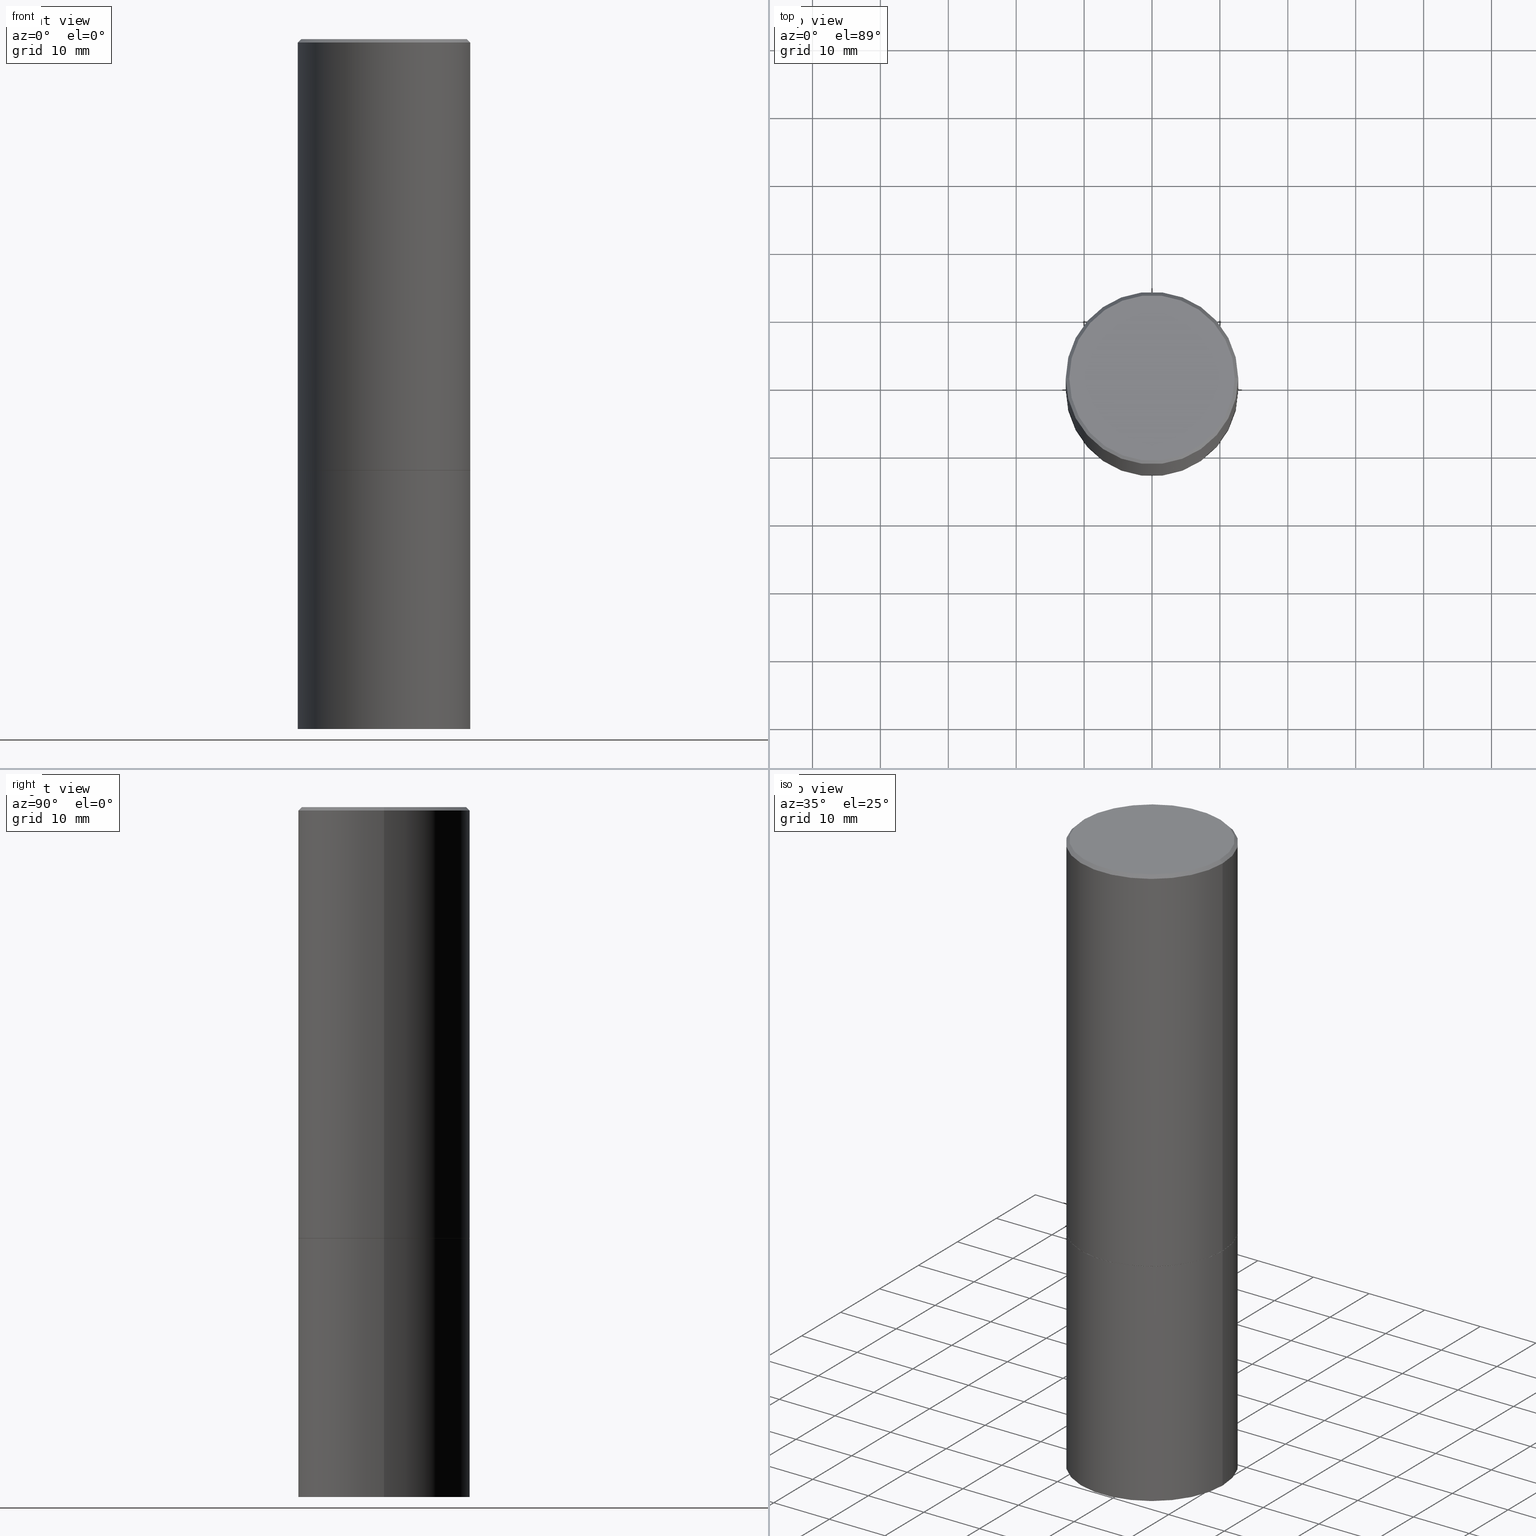
[diagram: canonical four-view strip — front | top / right | iso, engineering-drawing reading convention]
A machine part, canonical four-view strip (front | top / right | iso — engineering-drawing reading convention). The complete STEP part file that produces these views, byte-faithful:
ISO-10303-21;
HEADER;
FILE_DESCRIPTION (( 'STEP AP203' ),
    '1' );
FILE_NAME ('39175.STEP',
    '2023-03-21T21:02:29',
    ( '' ),
    ( '' ),
    'SwSTEP 2.0',
    'SolidWorks 2022',
    '' );
FILE_SCHEMA (( 'CONFIG_CONTROL_DESIGN' ));
ENDSEC;

DATA;
#1 = VECTOR ( 'NONE', #141, 39.37007874015748143 ) ;
#2 = COORDINATED_UNIVERSAL_TIME_OFFSET ( 5, 0, .BEHIND. ) ;
#3 = CARTESIAN_POINT ( 'NONE',  ( 2.735601209579181363E-18, -1.387443496368411928E-14, -3.973796110358482903 ) ) ;
#4 = PERSON_AND_ORGANIZATION_ROLE ( 'classification_officer' ) ;
#5 = CC_DESIGN_PERSON_AND_ORGANIZATION_ASSIGNMENT ( #164, #129, ( #97 ) ) ;
#6 = CALENDAR_DATE ( 2023, 21, 3 ) ;
#7 = DIRECTION ( 'NONE',  ( -2.445468806185136597E-29, 3.491481338843145583E-15, 1.000000000000000000 ) ) ;
#8 = ADVANCED_FACE ( 'NONE', ( #349 ), #100, .F. ) ;
#9 = APPLICATION_CONTEXT ( 'configuration controlled 3d designs of mechanical parts and assemblies' ) ;
#10 = FACE_OUTER_BOUND ( 'NONE', #378, .T. ) ;
#11 = FACE_OUTER_BOUND ( 'NONE', #121, .T. ) ;
#12 = AXIS2_PLACEMENT_3D ( 'NONE', #85, #350, #293 ) ;
#13 = CC_DESIGN_APPROVAL ( #201, ( #106 ) ) ;
#14 = PRODUCT_DEFINITION_SHAPE ( 'NONE', 'NONE',  #97 ) ;
#15 = DIRECTION ( 'NONE',  ( -2.445468806185136597E-29, 3.491481338843145583E-15, 1.000000000000000000 ) ) ;
#16 = ADVANCED_BREP_SHAPE_REPRESENTATION ( '39175', ( #67, #326, #187 ), #219 ) ;
#17 = CARTESIAN_POINT ( 'NONE',  ( -0.5000000000000001110, -8.448070674724403070E-16, -2.499000000000000110 ) ) ;
#18 = ORIENTED_EDGE ( 'NONE', *, *, #136, .T. ) ;
#19 = CARTESIAN_POINT ( 'NONE',  ( 0.4999999999999997780, -3.500078625662627896E-15, -0.02000000000000011491 ) ) ;
#20 = DIRECTION ( 'NONE',  ( 1.000000000000000000, -6.982962677686266711E-15, 0.000000000000000000 ) ) ;
#21 = ORIENTED_EDGE ( 'NONE', *, *, #154, .F. ) ;
#22 = CIRCLE ( 'NONE', #248, 0.5000000000000001110 ) ;
#23 = LOCAL_TIME ( 17, 2, 29.00000000000000000, #345 ) ;
#24 = CARTESIAN_POINT ( 'NONE',  ( 0.4999999999999993894, -1.739617435425834338E-14, -4.000000000000000000 ) ) ;
#25 = LINE ( 'NONE', #19, #66 ) ;
#26 = EDGE_LOOP ( 'NONE', ( #302, #366 ) ) ;
#27 = CARTESIAN_POINT ( 'NONE',  ( 0.000000000000000000, 0.000000000000000000, 0.000000000000000000 ) ) ;
#28 = EDGE_CURVE ( 'NONE', #245, #148, #262, .T. ) ;
#29 = ORIENTED_EDGE ( 'NONE', *, *, #86, .T. ) ;
#30 = ORIENTED_EDGE ( 'NONE', *, *, #221, .T. ) ;
#31 = DIRECTION ( 'NONE',  ( 0.7071067811866441621, -2.468850131083269169E-15, 0.7071067811864508723 ) ) ;
#32 = LOCAL_TIME ( 17, 2, 29.00000000000000000, #192 ) ;
#33 = CARTESIAN_POINT ( 'NONE',  ( 0.4989999999999999991, -1.221320172327331228E-14, -2.500000000000000000 ) ) ;
#34 = APPROVAL_STATUS ( 'not_yet_approved' ) ;
#35 = ORIENTED_EDGE ( 'NONE', *, *, #28, .T. ) ;
#36 = PERSON_AND_ORGANIZATION ( #41, #89 ) ;
#37 = AXIS2_PLACEMENT_3D ( 'NONE', #355, #319, #87 ) ;
#38 = VERTEX_POINT ( 'NONE', #114 ) ;
#39 = ORIENTED_EDGE ( 'NONE', *, *, #86, .F. ) ;
#40 = DATE_AND_TIME ( #280, #23 ) ;
#41 = PERSON ( 'UNSPECIFIED', 'UNSPECIFIED', 'UNSPECIFIED', ('UNSPECIFIED'), ('UNSPECIFIED'), ('UNSPECIFIED') ) ;
#42 = CALENDAR_DATE ( 2023, 21, 3 ) ;
#43 = CONICAL_SURFACE ( 'NONE', #257, 0.4989999999999999991, 0.7853981633975849475 ) ;
#44 = CONICAL_SURFACE ( 'NONE', #263, 751.2258538476644389, 1.518436449235073482 ) ;
#45 = CARTESIAN_POINT ( 'NONE',  ( 4.890937612370302060E-31, -6.982962677686331052E-17, -0.02000000000000011491 ) ) ;
#46 = ADVANCED_FACE ( 'NONE', ( #82 ), #274, .T. ) ;
#47 = CARTESIAN_POINT ( 'NONE',  ( -0.4999999999999993894, -1.047444401652945213E-14, -4.000000000000000000 ) ) ;
#48 = ADVANCED_FACE ( 'NONE', ( #53 ), #380, .F. ) ;
#49 = DIRECTION ( 'NONE',  ( 0.7071067811865464625, -7.319954787623252890E-15, -0.7071067811865485719 ) ) ;
#50 = CARTESIAN_POINT ( 'NONE',  ( 4.890937612370302060E-31, -6.982962677686331052E-17, -0.02000000000000011491 ) ) ;
#51 = DIRECTION ( 'NONE',  ( -2.445468806185136877E-29, 3.491481338843145188E-15, 1.000000000000000000 ) ) ;
#52 = VECTOR ( 'NONE', #51, 39.37007874015748143 ) ;
#53 = FACE_OUTER_BOUND ( 'NONE', #26, .T. ) ;
#54 = ORIENTED_EDGE ( 'NONE', *, *, #104, .F. ) ;
#55 = DIMENSIONAL_EXPONENTS ( 1.000000000000000000, 0.000000000000000000, 0.000000000000000000, 0.000000000000000000, 0.000000000000000000, 0.000000000000000000, 0.000000000000000000 ) ;
#56 = DIRECTION ( 'NONE',  ( -2.445468806185136877E-29, 3.491481338843145188E-15, 1.000000000000000000 ) ) ;
#57 = VERTEX_POINT ( 'NONE', #126 ) ;
#58 = DIRECTION ( 'NONE',  ( 1.000000000000000000, -6.982962677686266711E-15, 0.000000000000000000 ) ) ;
#59 = LINE ( 'NONE', #145, #344 ) ;
#60 = AXIS2_PLACEMENT_3D ( 'NONE', #186, #123, #299 ) ;
#61 = CARTESIAN_POINT ( 'NONE',  ( 0.000000000000000000, 0.000000000000000000, 0.000000000000000000 ) ) ;
#62 = EDGE_CURVE ( 'NONE', #245, #240, #25, .T. ) ;
#63 = ORIENTED_EDGE ( 'NONE', *, *, #292, .T. ) ;
#64 = LENGTH_MEASURE_WITH_UNIT ( LENGTH_MEASURE( 0.02539999999999999897 ), #304 );
#65 = CYLINDRICAL_SURFACE ( 'NONE', #348, 0.5000000000000000000 ) ;
#66 = VECTOR ( 'NONE', #49, 39.37007874015748143 ) ;
#67 = MANIFOLD_SOLID_BREP ( 'Body-Move/Copy2[1]', #382 ) ;
#68 = FACE_OUTER_BOUND ( 'NONE', #277, .T. ) ;
#69 = ORIENTED_EDGE ( 'NONE', *, *, #359, .T. ) ;
#70 = CALENDAR_DATE ( 2023, 21, 3 ) ;
#71 = DIRECTION ( 'NONE',  ( 0.9986295347545742773, -7.033825938271998700E-15, -0.05233595624293709697 ) ) ;
#72 = ORIENTED_EDGE ( 'NONE', *, *, #154, .T. ) ;
#73 = ORIENTED_EDGE ( 'NONE', *, *, #352, .F. ) ;
#74 = ADVANCED_FACE ( 'NONE', ( #10 ), #170, .F. ) ;
#75 = CALENDAR_DATE ( 2023, 21, 3 ) ;
#76 = APPROVAL_DATE_TIME ( #40, #124 ) ;
#77 = CARTESIAN_POINT ( 'NONE',  ( 1.059960938861292495E-27, -1.513343301937292314E-13, -43.34387485051595945 ) ) ;
#78 = AXIS2_PLACEMENT_3D ( 'NONE', #140, #233, #295 ) ;
#79 = EDGE_CURVE ( 'NONE', #148, #57, #84, .T. ) ;
#80 = DIRECTION ( 'NONE',  ( -2.445468806185136597E-29, 3.491481338843145583E-15, 1.000000000000000000 ) ) ;
#81 = DIRECTION ( 'NONE',  ( 2.438088387897960049E-29, -3.491481338843145188E-15, -1.000000000000000000 ) ) ;
#82 = FACE_OUTER_BOUND ( 'NONE', #272, .T. ) ;
#83 = LINE ( 'NONE', #239, #52 ) ;
#84 = LINE ( 'NONE', #385, #1 ) ;
#85 = CARTESIAN_POINT ( 'NONE',  ( 0.000000000000000000, 0.000000000000000000, 0.000000000000000000 ) ) ;
#86 = EDGE_CURVE ( 'NONE', #38, #335, #238, .T. ) ;
#87 = DIRECTION ( 'NONE',  ( 1.000000000000000000, -6.982962677686266711E-15, 4.876176775795935793E-29 ) ) ;
#88 = CIRCLE ( 'NONE', #231, 0.5000000000000000000 ) ;
#89 = ORGANIZATION ( 'UNSPECIFIED', 'UNSPECIFIED', '' ) ;
#90 = ORIENTED_EDGE ( 'NONE', *, *, #119, .T. ) ;
#91 = DIRECTION ( 'NONE',  ( 1.000000000000000000, -6.982962677686266711E-15, 0.000000000000000000 ) ) ;
#92 = ORIENTED_EDGE ( 'NONE', *, *, #283, .T. ) ;
#93 = APPLICATION_PROTOCOL_DEFINITION ( 'international standard', 'config_control_design', 1994, #109 ) ;
#94 = EDGE_CURVE ( 'NONE', #213, #377, #122, .T. ) ;
#95 = DIRECTION ( 'NONE',  ( -2.445468806185136597E-29, 3.491481338843145583E-15, 1.000000000000000000 ) ) ;
#96 = CARTESIAN_POINT ( 'NONE',  ( 0.000000000000000000, 0.000000000000000000, 0.000000000000000000 ) ) ;
#97 = PRODUCT_DEFINITION ( 'UNKNOWN', '', #106, #307 ) ;
#98 = DIRECTION ( 'NONE',  ( -2.445468806185136597E-29, 3.491481338843145583E-15, 1.000000000000000000 ) ) ;
#99 = DIRECTION ( 'NONE',  ( 1.000000000000000000, -6.982962677686266711E-15, 4.876176775795935793E-29 ) ) ;
#100 = CONICAL_SURFACE ( 'NONE', #144, 751.2258538476644389, 1.518436449235073482 ) ;
#101 = APPROVAL_DATE_TIME ( #282, #331 ) ;
#102 = PERSON_AND_ORGANIZATION ( #41, #89 ) ;
#103 = PERSON_AND_ORGANIZATION ( #41, #89 ) ;
#104 = EDGE_CURVE ( 'NONE', #179, #162, #388, .T. ) ;
#105 = COORDINATED_UNIVERSAL_TIME_OFFSET ( 5, 0, .BEHIND. ) ;
#106 = PRODUCT_DEFINITION_FORMATION_WITH_SPECIFIED_SOURCE ( 'ANY', '', #288, .NOT_KNOWN. ) ;
#107 = DIRECTION ( 'NONE',  ( -1.000000000000000000, 6.982962677686265922E-15, -4.876176775795935793E-29 ) ) ;
#108 = CARTESIAN_POINT ( 'NONE',  ( 6.113672015462842613E-29, -8.728703347107864943E-15, -2.500000000000000000 ) ) ;
#109 = APPLICATION_CONTEXT ( 'configuration controlled 3d designs of mechanical parts and assemblies' ) ;
#110 = CONICAL_SURFACE ( 'NONE', #367, 0.4999999999999997780, 0.7853981633974468357 ) ;
#111 = CARTESIAN_POINT ( 'NONE',  ( 0.5000000000000000000, -1.222018468595099830E-14, -2.500000000000000000 ) ) ;
#112 = DIRECTION ( 'NONE',  ( -1.000000000000000000, 6.982962677686265922E-15, 0.000000000000000000 ) ) ;
#113 = CARTESIAN_POINT ( 'NONE',  ( 0.4999999999999997780, -3.500078625662627896E-15, -0.02000000000000011491 ) ) ;
#114 = CARTESIAN_POINT ( 'NONE',  ( 9.715884169906814161E-29, -1.387717056489360055E-14, -3.973796110358482903 ) ) ;
#115 = DIRECTION ( 'NONE',  ( -0.7071067811866441621, 7.493145998870704414E-15, 0.7071067811864508723 ) ) ;
#116 = CARTESIAN_POINT ( 'NONE',  ( 3.491481338843194098E-15, 0.4999999999999912292, -2.500000000000001776 ) ) ;
#117 = ORIENTED_EDGE ( 'NONE', *, *, #130, .F. ) ;
#118 = CARTESIAN_POINT ( 'NONE',  ( 6.113672015462842613E-29, -8.728703347107864943E-15, -2.500000000000000000 ) ) ;
#119 = EDGE_CURVE ( 'NONE', #211, #240, #138, .T. ) ;
#120 = FACE_OUTER_BOUND ( 'NONE', #216, .T. ) ;
#121 = EDGE_LOOP ( 'NONE', ( #143, #200, #173, #354 ) ) ;
#122 = CIRCLE ( 'NONE', #383, 0.4989999999999999991 ) ;
#123 = DIRECTION ( 'NONE',  ( -2.438088387897960049E-29, 3.491481338843145188E-15, 1.000000000000000000 ) ) ;
#124 = APPROVAL ( #368, 'UNSPECIFIED' ) ;
#125 = DIRECTION ( 'NONE',  ( 1.000000000000000000, -6.982962677686266711E-15, 4.876176775795935793E-29 ) ) ;
#126 = CARTESIAN_POINT ( 'NONE',  ( -0.4999999999999997780, 3.421651712066268479E-15, -0.02000000000000011491 ) ) ;
#127 = MECHANICAL_CONTEXT ( 'NONE', #109, 'mechanical' ) ;
#128 = VECTOR ( 'NONE', #318, 39.37007874015748143 ) ;
#129 = PERSON_AND_ORGANIZATION_ROLE ( 'creator' ) ;
#130 = EDGE_CURVE ( 'NONE', #250, #335, #218, .T. ) ;
#131 = SECURITY_CLASSIFICATION_LEVEL ( 'unclassified' ) ;
#132 = CC_DESIGN_PERSON_AND_ORGANIZATION_ASSIGNMENT ( #278, #4, ( #253 ) ) ;
#133 = DATE_TIME_ROLE ( 'classification_date' ) ;
#134 = CIRCLE ( 'NONE', #356, 0.4999999999999997780 ) ;
#135 = CARTESIAN_POINT ( 'NONE',  ( -2.735601209384825372E-18, -1.387443496368411928E-14, -3.973796110358482903 ) ) ;
#136 = EDGE_CURVE ( 'NONE', #240, #57, #209, .T. ) ;
#137 = VECTOR ( 'NONE', #71, 39.37007874015748143 ) ;
#138 = LINE ( 'NONE', #259, #146 ) ;
#139 = CARTESIAN_POINT ( 'NONE',  ( 9.781875224740546387E-29, -1.396592535537258233E-14, -4.000000000000000000 ) ) ;
#140 = CARTESIAN_POINT ( 'NONE',  ( -1.043851414335219820E-46, 1.490343170380447200E-32, 4.268512490100411279E-18 ) ) ;
#141 = DIRECTION ( 'NONE',  ( -0.7071067811865464625, 2.468850131082245622E-15, -0.7071067811865485719 ) ) ;
#142 = CYLINDRICAL_SURFACE ( 'NONE', #37, 0.4999999999999999445 ) ;
#143 = ORIENTED_EDGE ( 'NONE', *, *, #313, .T. ) ;
#144 = AXIS2_PLACEMENT_3D ( 'NONE', #77, #193, #112 ) ;
#145 = CARTESIAN_POINT ( 'NONE',  ( 0.5000000000000000000, -3.491481338843133355E-15, 2.438088387897967896E-29 ) ) ;
#146 = VECTOR ( 'NONE', #208, 39.37007874015748143 ) ;
#147 = CC_DESIGN_DATE_AND_TIME_ASSIGNMENT ( #284, #133, ( #253 ) ) ;
#148 = VERTEX_POINT ( 'NONE', #357 ) ;
#149 = DIRECTION ( 'NONE',  ( -2.445468806185136597E-29, 3.491481338843145583E-15, 1.000000000000000000 ) ) ;
#150 = ORIENTED_EDGE ( 'NONE', *, *, #176, .F. ) ;
#151 = ORIENTED_EDGE ( 'NONE', *, *, #286, .T. ) ;
#152 = ORIENTED_EDGE ( 'NONE', *, *, #79, .T. ) ;
#153 = DIRECTION ( 'NONE',  ( 1.000000000000000000, -6.982962677686266711E-15, 0.000000000000000000 ) ) ;
#154 = EDGE_CURVE ( 'NONE', #335, #250, #88, .T. ) ;
#155 = APPROVAL_PERSON_ORGANIZATION ( #222, #124, #191 ) ;
#156 = CARTESIAN_POINT ( 'NONE',  ( 6.111226546656657010E-29, -8.725211865769021935E-15, -2.499000000000000110 ) ) ;
#157 = ORIENTED_EDGE ( 'NONE', *, *, #94, .T. ) ;
#158 = CARTESIAN_POINT ( 'NONE',  ( 6.113672015462842613E-29, -8.728703347107864943E-15, -2.500000000000000000 ) ) ;
#159 = APPROVAL_ROLE ( '' ) ;
#160 = CIRCLE ( 'NONE', #171, 0.4989999999999999991 ) ;
#161 = PERSON_AND_ORGANIZATION ( #41, #89 ) ;
#162 = VERTEX_POINT ( 'NONE', #111 ) ;
#163 = DIRECTION ( 'NONE',  ( 2.438088387897960049E-29, -3.491481338843145188E-15, -1.000000000000000000 ) ) ;
#164 = PERSON_AND_ORGANIZATION ( #41, #89 ) ;
#165 = AXIS2_PLACEMENT_3D ( 'NONE', #317, #163, #107 ) ;
#166 = DIRECTION ( 'NONE',  ( 1.000000000000000000, -6.982962677686266711E-15, 0.000000000000000000 ) ) ;
#167 = ORIENTED_EDGE ( 'NONE', *, *, #130, .T. ) ;
#168 = LINE ( 'NONE', #379, #372 ) ;
#169 = ADVANCED_FACE ( 'NONE', ( #261 ), #351, .T. ) ;
#170 = PLANE ( 'NONE',  #165 ) ;
#171 = AXIS2_PLACEMENT_3D ( 'NONE', #241, #276, #153 ) ;
#172 = DIRECTION ( 'NONE',  ( 2.445468806185136597E-29, -3.491481338843145583E-15, -1.000000000000000000 ) ) ;
#173 = ORIENTED_EDGE ( 'NONE', *, *, #136, .F. ) ;
#174 = CARTESIAN_POINT ( 'NONE',  ( -0.4989999999999999991, -5.177796641316743408E-15, -2.500000000000000000 ) ) ;
#175 = ORIENTED_EDGE ( 'NONE', *, *, #28, .F. ) ;
#176 = EDGE_CURVE ( 'NONE', #235, #57, #83, .T. ) ;
#177 = DIRECTION ( 'NONE',  ( -2.445468806185136597E-29, 3.491481338843145583E-15, 1.000000000000000000 ) ) ;
#178 = EDGE_CURVE ( 'NONE', #213, #235, #168, .T. ) ;
#179 = VERTEX_POINT ( 'NONE', #289 ) ;
#180 = PLANE ( 'NONE',  #60 ) ;
#181 = AXIS2_PLACEMENT_3D ( 'NONE', #184, #217, #214 ) ;
#182 = ORIENTED_EDGE ( 'NONE', *, *, #178, .T. ) ;
#183 = DIRECTION ( 'NONE',  ( 0.000000000000000000, 0.000000000000000000, 1.000000000000000000 ) ) ;
#184 = CARTESIAN_POINT ( 'NONE',  ( 6.111226546656657010E-29, -8.725211865769021935E-15, -2.499000000000000110 ) ) ;
#185 = ORIENTED_EDGE ( 'NONE', *, *, #352, .T. ) ;
#186 = CARTESIAN_POINT ( 'NONE',  ( 6.113672015462842613E-29, -8.728703347107864943E-15, -2.500000000000000000 ) ) ;
#187 = AXIS2_PLACEMENT_3D ( 'NONE', #61, #183, #227 ) ;
#188 = PERSON_AND_ORGANIZATION_ROLE ( 'creator' ) ;
#189 = AXIS2_PLACEMENT_3D ( 'NONE', #50, #15, #328 ) ;
#190 = AXIS2_PLACEMENT_3D ( 'NONE', #389, #210, #273 ) ;
#191 = APPROVAL_ROLE ( '' ) ;
#192 = COORDINATED_UNIVERSAL_TIME_OFFSET ( 5, 0, .BEHIND. ) ;
#193 = DIRECTION ( 'NONE',  ( 2.445468806185136597E-29, -3.491481338843145583E-15, -1.000000000000000000 ) ) ;
#194 = VECTOR ( 'NONE', #31, 39.37007874015748143 ) ;
#195 = LOCAL_TIME ( 17, 2, 29.00000000000000000, #2 ) ;
#196 = LINE ( 'NONE', #135, #128 ) ;
#197 = DIRECTION ( 'NONE',  ( -1.000000000000000000, 6.982962677686265922E-15, -4.876176775795935793E-29 ) ) ;
#198 = ADVANCED_FACE ( 'NONE', ( #11 ), #142, .T. ) ;
#199 = DIRECTION ( 'NONE',  ( 2.445468806185136597E-29, -3.491481338843145583E-15, -1.000000000000000000 ) ) ;
#200 = ORIENTED_EDGE ( 'NONE', *, *, #176, .T. ) ;
#201 = APPROVAL ( #34, 'UNSPECIFIED' ) ;
#202 = DIRECTION ( 'NONE',  ( -2.445468806185136597E-29, 3.491481338843145583E-15, 1.000000000000000000 ) ) ;
#203 = EDGE_LOOP ( 'NONE', ( #39, #92, #21 ) ) ;
#204 = VECTOR ( 'NONE', #56, 39.37007874015748143 ) ;
#205 = AXIS2_PLACEMENT_3D ( 'NONE', #361, #149, #271 ) ;
#206 = CARTESIAN_POINT ( 'NONE',  ( 4.890937612370302060E-31, -6.982962677686331052E-17, -0.02000000000000011491 ) ) ;
#207 = ORIENTED_EDGE ( 'NONE', *, *, #283, .F. ) ;
#208 = DIRECTION ( 'NONE',  ( -2.445468806185136877E-29, 3.491481338843145188E-15, 1.000000000000000000 ) ) ;
#209 = CIRCLE ( 'NONE', #189, 0.4999999999999997780 ) ;
#210 = DIRECTION ( 'NONE',  ( -2.445468806185136597E-29, 3.491481338843145583E-15, 1.000000000000000000 ) ) ;
#211 = VERTEX_POINT ( 'NONE', #287 ) ;
#212 = CC_DESIGN_DATE_AND_TIME_ASSIGNMENT ( #312, #371, ( #97 ) ) ;
#213 = VERTEX_POINT ( 'NONE', #174 ) ;
#214 = DIRECTION ( 'NONE',  ( 1.000000000000000000, -6.982962677686267499E-15, 0.000000000000000000 ) ) ;
#215 = EDGE_LOOP ( 'NONE', ( #207, #29, #117 ) ) ;
#216 = EDGE_LOOP ( 'NONE', ( #358, #167, #268, #54 ) ) ;
#217 = DIRECTION ( 'NONE',  ( -2.445468806185136597E-29, 3.491481338843145583E-15, 1.000000000000000000 ) ) ;
#218 = CIRCLE ( 'NONE', #323, 0.5000000000000000000 ) ;
#219 =( GEOMETRIC_REPRESENTATION_CONTEXT ( 3 ) GLOBAL_UNCERTAINTY_ASSIGNED_CONTEXT ( ( #269 ) ) GLOBAL_UNIT_ASSIGNED_CONTEXT ( ( #334, #387, #266 ) ) REPRESENTATION_CONTEXT ( 'NONE', 'WORKASPACE' ) );
#220 = ORIENTED_EDGE ( 'NONE', *, *, #221, .F. ) ;
#221 = EDGE_CURVE ( 'NONE', #57, #240, #134, .T. ) ;
#222 = PERSON_AND_ORGANIZATION ( #41, #89 ) ;
#223 = EDGE_LOOP ( 'NONE', ( #150, #63, #90, #220 ) ) ;
#224 = ORIENTED_EDGE ( 'NONE', *, *, #178, .F. ) ;
#225 = LOCAL_TIME ( 17, 2, 29.00000000000000000, #105 ) ;
#226 = SHAPE_DEFINITION_REPRESENTATION ( #14, #16 ) ;
#227 = DIRECTION ( 'NONE',  ( 1.000000000000000000, 0.000000000000000000, 0.000000000000000000 ) ) ;
#228 = DIRECTION ( 'NONE',  ( 1.000000000000000000, -6.982962677686269077E-15, 0.000000000000000000 ) ) ;
#229 = ORIENTED_EDGE ( 'NONE', *, *, #292, .F. ) ;
#230 = EDGE_CURVE ( 'NONE', #250, #179, #376, .T. ) ;
#231 = AXIS2_PLACEMENT_3D ( 'NONE', #139, #80, #20 ) ;
#232 = FACE_OUTER_BOUND ( 'NONE', #215, .T. ) ;
#233 = DIRECTION ( 'NONE',  ( -2.445468806185136597E-29, 3.491481338843145583E-15, 1.000000000000000000 ) ) ;
#234 = FACE_OUTER_BOUND ( 'NONE', #386, .T. ) ;
#235 = VERTEX_POINT ( 'NONE', #17 ) ;
#236 = DIRECTION ( 'NONE',  ( 1.000000000000000000, -6.982962677686266711E-15, 0.000000000000000000 ) ) ;
#237 = PRODUCT_RELATED_PRODUCT_CATEGORY ( 'detail', '', ( #288 ) ) ;
#238 = LINE ( 'NONE', #3, #137 ) ;
#239 = CARTESIAN_POINT ( 'NONE',  ( -0.4999999999999999445, 3.552713678800500535E-15, -2.459467545127452611E-29 ) ) ;
#240 = VERTEX_POINT ( 'NONE', #113 ) ;
#241 = CARTESIAN_POINT ( 'NONE',  ( 6.113672015462842613E-29, -8.728703347107864943E-15, -2.500000000000000000 ) ) ;
#242 = ORIENTED_EDGE ( 'NONE', *, *, #62, .T. ) ;
#243 = APPROVAL_PERSON_ORGANIZATION ( #369, #201, #159 ) ;
#244 = CYLINDRICAL_SURFACE ( 'NONE', #297, 0.4999999999999999445 ) ;
#245 = VERTEX_POINT ( 'NONE', #381 ) ;
#246 = ADVANCED_FACE ( 'NONE', ( #234 ), #43, .T. ) ;
#247 = CC_DESIGN_PERSON_AND_ORGANIZATION_ASSIGNMENT ( #36, #308, ( #288 ) ) ;
#248 = AXIS2_PLACEMENT_3D ( 'NONE', #156, #363, #339 ) ;
#249 = CIRCLE ( 'NONE', #205, 0.4799999999999997047 ) ;
#250 = VERTEX_POINT ( 'NONE', #47 ) ;
#251 = DATE_AND_TIME ( #42, #195 ) ;
#252 = APPROVAL_ROLE ( '' ) ;
#253 = SECURITY_CLASSIFICATION ( '', '', #131 ) ;
#254 = CARTESIAN_POINT ( 'NONE',  ( 1.059960938861292495E-27, -1.513343301937292314E-13, -43.34387485051595945 ) ) ;
#255 = ADVANCED_FACE ( 'NONE', ( #232 ), #44, .F. ) ;
#256 = FACE_OUTER_BOUND ( 'NONE', #275, .T. ) ;
#257 = AXIS2_PLACEMENT_3D ( 'NONE', #118, #320, #91 ) ;
#258 = CC_DESIGN_APPROVAL ( #124, ( #97 ) ) ;
#259 = CARTESIAN_POINT ( 'NONE',  ( 0.4999999999999999445, -3.491481338843132961E-15, 2.438088387897967616E-29 ) ) ;
#260 = DIRECTION ( 'NONE',  ( 1.000000000000000000, -6.982962677686269077E-15, 0.000000000000000000 ) ) ;
#261 = FACE_OUTER_BOUND ( 'NONE', #330, .T. ) ;
#262 = CIRCLE ( 'NONE', #78, 0.4799999999999997047 ) ;
#263 = AXIS2_PLACEMENT_3D ( 'NONE', #254, #172, #374 ) ;
#264 = EDGE_LOOP ( 'NONE', ( #73, #342 ) ) ;
#265 = AXIS2_PLACEMENT_3D ( 'NONE', #347, #177, #260 ) ;
#266 =( NAMED_UNIT ( * ) SI_UNIT ( $, .STERADIAN. ) SOLID_ANGLE_UNIT ( ) );
#267 = DIRECTION ( 'NONE',  ( -1.000000000000000000, 6.982962677686266711E-15, 0.000000000000000000 ) ) ;
#268 = ORIENTED_EDGE ( 'NONE', *, *, #314, .T. ) ;
#269 = UNCERTAINTY_MEASURE_WITH_UNIT (LENGTH_MEASURE( 1.000000000000000082E-05 ), #334, 'distance_accuracy_value', 'NONE');
#270 = EDGE_CURVE ( 'NONE', #162, #179, #315, .T. ) ;
#271 = DIRECTION ( 'NONE',  ( 1.000000000000000000, -6.982962677686267499E-15, 4.876234413615774643E-29 ) ) ;
#272 = EDGE_LOOP ( 'NONE', ( #390, #327, #152, #30 ) ) ;
#273 = DIRECTION ( 'NONE',  ( 1.000000000000000000, -6.982962677686266711E-15, 0.000000000000000000 ) ) ;
#274 = CONICAL_SURFACE ( 'NONE', #281, 0.4999999999999997780, 0.7853981633974468357 ) ;
#275 = EDGE_LOOP ( 'NONE', ( #175, #242, #18, #300 ) ) ;
#276 = DIRECTION ( 'NONE',  ( -2.445468806185136597E-29, 3.491481338843145583E-15, 1.000000000000000000 ) ) ;
#277 = EDGE_LOOP ( 'NONE', ( #224, #157, #151, #229 ) ) ;
#278 = PERSON_AND_ORGANIZATION ( #41, #89 ) ;
#279 = ORIENTED_EDGE ( 'NONE', *, *, #270, .F. ) ;
#280 = CALENDAR_DATE ( 2023, 21, 3 ) ;
#281 = AXIS2_PLACEMENT_3D ( 'NONE', #45, #321, #316 ) ;
#282 = DATE_AND_TIME ( #70, #225 ) ;
#283 = EDGE_CURVE ( 'NONE', #38, #250, #196, .T. ) ;
#284 = DATE_AND_TIME ( #6, #333 ) ;
#285 = ADVANCED_FACE ( 'NONE', ( #256 ), #110, .T. ) ;
#286 = EDGE_CURVE ( 'NONE', #377, #211, #301, .T. ) ;
#287 = CARTESIAN_POINT ( 'NONE',  ( 0.5000000000000001110, -1.221669320461215687E-14, -2.499000000000000110 ) ) ;
#288 = PRODUCT ( '39175', '39175', '', ( #127 ) ) ;
#289 = CARTESIAN_POINT ( 'NONE',  ( -0.5000000000000000000, -7.794600672439723496E-15, -2.500000000000000000 ) ) ;
#290 = AXIS2_PLACEMENT_3D ( 'NONE', #108, #7, #228 ) ;
#291 = CONICAL_SURFACE ( 'NONE', #190, 0.4989999999999999991, 0.7853981633975849475 ) ;
#292 = EDGE_CURVE ( 'NONE', #235, #211, #22, .T. ) ;
#293 = DIRECTION ( 'NONE',  ( 1.000000000000000000, -6.982962677686266711E-15, 4.876176775795935793E-29 ) ) ;
#294 = CARTESIAN_POINT ( 'NONE',  ( 9.781875224740546387E-29, -1.396592535537258233E-14, -4.000000000000000000 ) ) ;
#295 = DIRECTION ( 'NONE',  ( 1.000000000000000000, -6.982962677686267499E-15, 4.876234413615774643E-29 ) ) ;
#296 = DIRECTION ( 'NONE',  ( -2.445468806185136597E-29, 3.491481338843145583E-15, 1.000000000000000000 ) ) ;
#297 = AXIS2_PLACEMENT_3D ( 'NONE', #27, #365, #125 ) ;
#298 = CC_DESIGN_APPROVAL ( #331, ( #253 ) ) ;
#299 = DIRECTION ( 'NONE',  ( 1.000000000000000000, -6.982962677686265922E-15, 4.876176775795935793E-29 ) ) ;
#300 = ORIENTED_EDGE ( 'NONE', *, *, #79, .F. ) ;
#301 = LINE ( 'NONE', #33, #194 ) ;
#302 = ORIENTED_EDGE ( 'NONE', *, *, #270, .T. ) ;
#303 = DIRECTION ( 'NONE',  ( -2.445468806185136877E-29, 3.491481338843145188E-15, 1.000000000000000000 ) ) ;
#304 =( LENGTH_UNIT ( ) NAMED_UNIT ( * ) SI_UNIT ( $, .METRE. ) );
#305 = APPROVAL_PERSON_ORGANIZATION ( #102, #331, #252 ) ;
#306 = ADVANCED_FACE ( 'NONE', ( #120 ), #65, .T. ) ;
#307 = DESIGN_CONTEXT ( 'detailed design', #9, 'design' ) ;
#308 = PERSON_AND_ORGANIZATION_ROLE ( 'design_owner' ) ;
#309 = AXIS2_PLACEMENT_3D ( 'NONE', #116, #81, #197 ) ;
#310 = ADVANCED_FACE ( 'NONE', ( #329 ), #244, .T. ) ;
#311 = APPROVAL_DATE_TIME ( #251, #201 ) ;
#312 = DATE_AND_TIME ( #75, #32 ) ;
#313 = EDGE_CURVE ( 'NONE', #211, #235, #332, .T. ) ;
#314 = EDGE_CURVE ( 'NONE', #335, #162, #59, .T. ) ;
#315 = CIRCLE ( 'NONE', #290, 0.5000000000000000000 ) ;
#316 = DIRECTION ( 'NONE',  ( -1.000000000000000000, 6.982962677686266711E-15, 0.000000000000000000 ) ) ;
#317 = CARTESIAN_POINT ( 'NONE',  ( 3.351822085289405970E-15, 0.4799999999999997047, -1.673776786399658688E-15 ) ) ;
#318 = DIRECTION ( 'NONE',  ( -0.9986295347545742773, 6.790662755453666100E-15, -0.05233595624293709697 ) ) ;
#319 = DIRECTION ( 'NONE',  ( -2.445468806185136597E-29, 3.491481338843145583E-15, 1.000000000000000000 ) ) ;
#320 = DIRECTION ( 'NONE',  ( -2.445468806185136597E-29, 3.491481338843145583E-15, 1.000000000000000000 ) ) ;
#321 = DIRECTION ( 'NONE',  ( 2.445468806185136597E-29, -3.491481338843145583E-15, -1.000000000000000000 ) ) ;
#322 = ADVANCED_FACE ( 'NONE', ( #384 ), #180, .F. ) ;
#323 = AXIS2_PLACEMENT_3D ( 'NONE', #294, #296, #166 ) ;
#324 = ORIENTED_EDGE ( 'NONE', *, *, #313, .F. ) ;
#325 = CARTESIAN_POINT ( 'NONE',  ( -0.5000000000000000000, 3.552713678800500929E-15, -2.459467545127452891E-29 ) ) ;
#326 = MANIFOLD_SOLID_BREP ( 'Body-Move/Copy2[2]', #338 ) ;
#327 = ORIENTED_EDGE ( 'NONE', *, *, #359, .F. ) ;
#328 = DIRECTION ( 'NONE',  ( 1.000000000000000000, -6.982962677686266711E-15, 0.000000000000000000 ) ) ;
#329 = FACE_OUTER_BOUND ( 'NONE', #223, .T. ) ;
#330 = EDGE_LOOP ( 'NONE', ( #72, #346, #279, #362 ) ) ;
#331 = APPROVAL ( #341, 'UNSPECIFIED' ) ;
#332 = CIRCLE ( 'NONE', #181, 0.5000000000000001110 ) ;
#333 = LOCAL_TIME ( 17, 2, 29.00000000000000000, #340 ) ;
#334 =( CONVERSION_BASED_UNIT ( 'INCH', #64 ) LENGTH_UNIT ( ) NAMED_UNIT ( #55 ) );
#335 = VERTEX_POINT ( 'NONE', #24 ) ;
#336 = CARTESIAN_POINT ( 'NONE',  ( 0.4989999999999999991, -1.221320172327331228E-14, -2.500000000000000000 ) ) ;
#337 = CC_DESIGN_PERSON_AND_ORGANIZATION_ASSIGNMENT ( #103, #188, ( #106 ) ) ;
#338 = CLOSED_SHELL ( 'NONE', ( #246, #198, #285, #46, #310, #360, #322, #74 ) ) ;
#339 = DIRECTION ( 'NONE',  ( 1.000000000000000000, -6.982962677686267499E-15, 0.000000000000000000 ) ) ;
#340 = COORDINATED_UNIVERSAL_TIME_OFFSET ( 5, 0, .BEHIND. ) ;
#341 = APPROVAL_STATUS ( 'not_yet_approved' ) ;
#342 = ORIENTED_EDGE ( 'NONE', *, *, #94, .F. ) ;
#343 = PERSON_AND_ORGANIZATION_ROLE ( 'design_supplier' ) ;
#344 = VECTOR ( 'NONE', #303, 39.37007874015748143 ) ;
#345 = COORDINATED_UNIVERSAL_TIME_OFFSET ( 5, 0, .BEHIND. ) ;
#346 = ORIENTED_EDGE ( 'NONE', *, *, #230, .T. ) ;
#347 = CARTESIAN_POINT ( 'NONE',  ( 6.113672015462842613E-29, -8.728703347107864943E-15, -2.500000000000000000 ) ) ;
#348 = AXIS2_PLACEMENT_3D ( 'NONE', #96, #95, #99 ) ;
#349 = FACE_OUTER_BOUND ( 'NONE', #203, .T. ) ;
#350 = DIRECTION ( 'NONE',  ( -2.445468806185136597E-29, 3.491481338843145583E-15, 1.000000000000000000 ) ) ;
#351 = CYLINDRICAL_SURFACE ( 'NONE', #12, 0.5000000000000000000 ) ;
#352 = EDGE_CURVE ( 'NONE', #377, #213, #160, .T. ) ;
#353 = CC_DESIGN_PERSON_AND_ORGANIZATION_ASSIGNMENT ( #161, #343, ( #106 ) ) ;
#354 = ORIENTED_EDGE ( 'NONE', *, *, #119, .F. ) ;
#355 = CARTESIAN_POINT ( 'NONE',  ( 0.000000000000000000, 0.000000000000000000, 0.000000000000000000 ) ) ;
#356 = AXIS2_PLACEMENT_3D ( 'NONE', #206, #202, #58 ) ;
#357 = CARTESIAN_POINT ( 'NONE',  ( -0.4799999999999997047, 3.386736898677837619E-15, 4.268512490076848682E-18 ) ) ;
#358 = ORIENTED_EDGE ( 'NONE', *, *, #230, .F. ) ;
#359 = EDGE_CURVE ( 'NONE', #148, #245, #249, .T. ) ;
#360 = ADVANCED_FACE ( 'NONE', ( #68 ), #291, .T. ) ;
#361 = CARTESIAN_POINT ( 'NONE',  ( -1.043851414335219820E-46, 1.490343170380447200E-32, 4.268512490100411279E-18 ) ) ;
#362 = ORIENTED_EDGE ( 'NONE', *, *, #314, .F. ) ;
#363 = DIRECTION ( 'NONE',  ( -2.445468806185136597E-29, 3.491481338843145583E-15, 1.000000000000000000 ) ) ;
#364 = ORIENTED_EDGE ( 'NONE', *, *, #286, .F. ) ;
#365 = DIRECTION ( 'NONE',  ( -2.445468806185136597E-29, 3.491481338843145583E-15, 1.000000000000000000 ) ) ;
#366 = ORIENTED_EDGE ( 'NONE', *, *, #104, .T. ) ;
#367 = AXIS2_PLACEMENT_3D ( 'NONE', #375, #199, #267 ) ;
#368 = APPROVAL_STATUS ( 'not_yet_approved' ) ;
#369 = PERSON_AND_ORGANIZATION ( #41, #89 ) ;
#370 = APPLICATION_PROTOCOL_DEFINITION ( 'international standard', 'config_control_design', 1994, #9 ) ;
#371 = DATE_TIME_ROLE ( 'creation_date' ) ;
#372 = VECTOR ( 'NONE', #115, 39.37007874015748143 ) ;
#373 = CC_DESIGN_SECURITY_CLASSIFICATION ( #253, ( #106 ) ) ;
#374 = DIRECTION ( 'NONE',  ( -1.000000000000000000, 6.982962677686265922E-15, 0.000000000000000000 ) ) ;
#375 = CARTESIAN_POINT ( 'NONE',  ( 4.890937612370302060E-31, -6.982962677686331052E-17, -0.02000000000000011491 ) ) ;
#376 = LINE ( 'NONE', #325, #204 ) ;
#377 = VERTEX_POINT ( 'NONE', #336 ) ;
#378 = EDGE_LOOP ( 'NONE', ( #69, #35 ) ) ;
#379 = CARTESIAN_POINT ( 'NONE',  ( -0.4989999999999999991, -5.183095095664965021E-15, -2.500000000000000000 ) ) ;
#380 = PLANE ( 'NONE',  #309 ) ;
#381 = CARTESIAN_POINT ( 'NONE',  ( 0.4799999999999997047, -3.396558832296480127E-15, 4.268512490124008543E-18 ) ) ;
#382 = CLOSED_SHELL ( 'NONE', ( #169, #255, #8, #306, #48 ) ) ;
#383 = AXIS2_PLACEMENT_3D ( 'NONE', #158, #98, #236 ) ;
#384 = FACE_OUTER_BOUND ( 'NONE', #264, .T. ) ;
#385 = CARTESIAN_POINT ( 'NONE',  ( -0.4999999999999997780, 3.421651712066268479E-15, -0.02000000000000011491 ) ) ;
#386 = EDGE_LOOP ( 'NONE', ( #185, #182, #324, #364 ) ) ;
#387 =( NAMED_UNIT ( * ) PLANE_ANGLE_UNIT ( ) SI_UNIT ( $, .RADIAN. ) );
#388 = CIRCLE ( 'NONE', #265, 0.5000000000000000000 ) ;
#389 = CARTESIAN_POINT ( 'NONE',  ( 6.113672015462842613E-29, -8.728703347107864943E-15, -2.500000000000000000 ) ) ;
#390 = ORIENTED_EDGE ( 'NONE', *, *, #62, .F. ) ;
ENDSEC;
END-ISO-10303-21;
